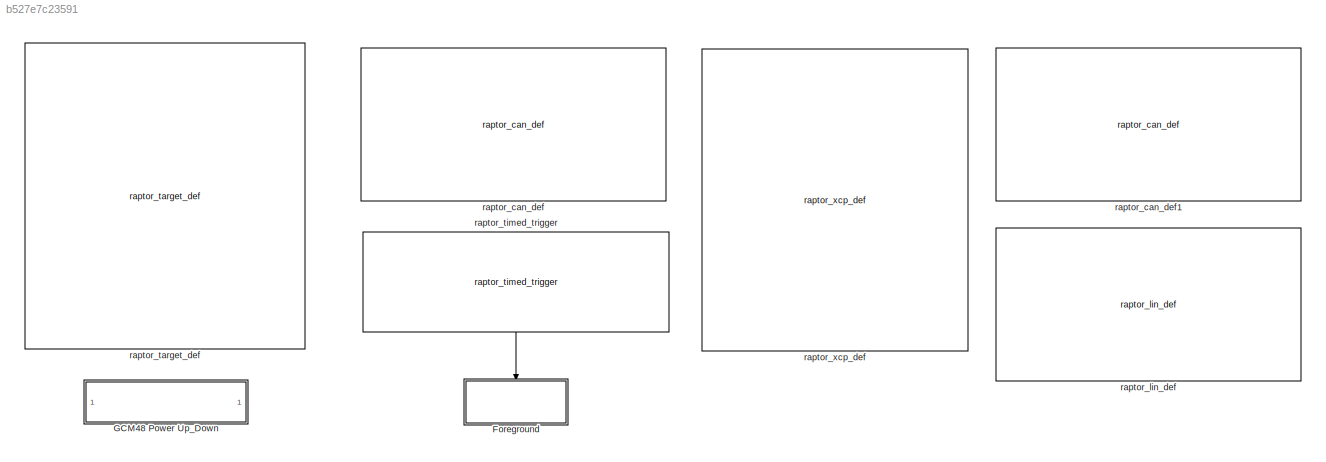
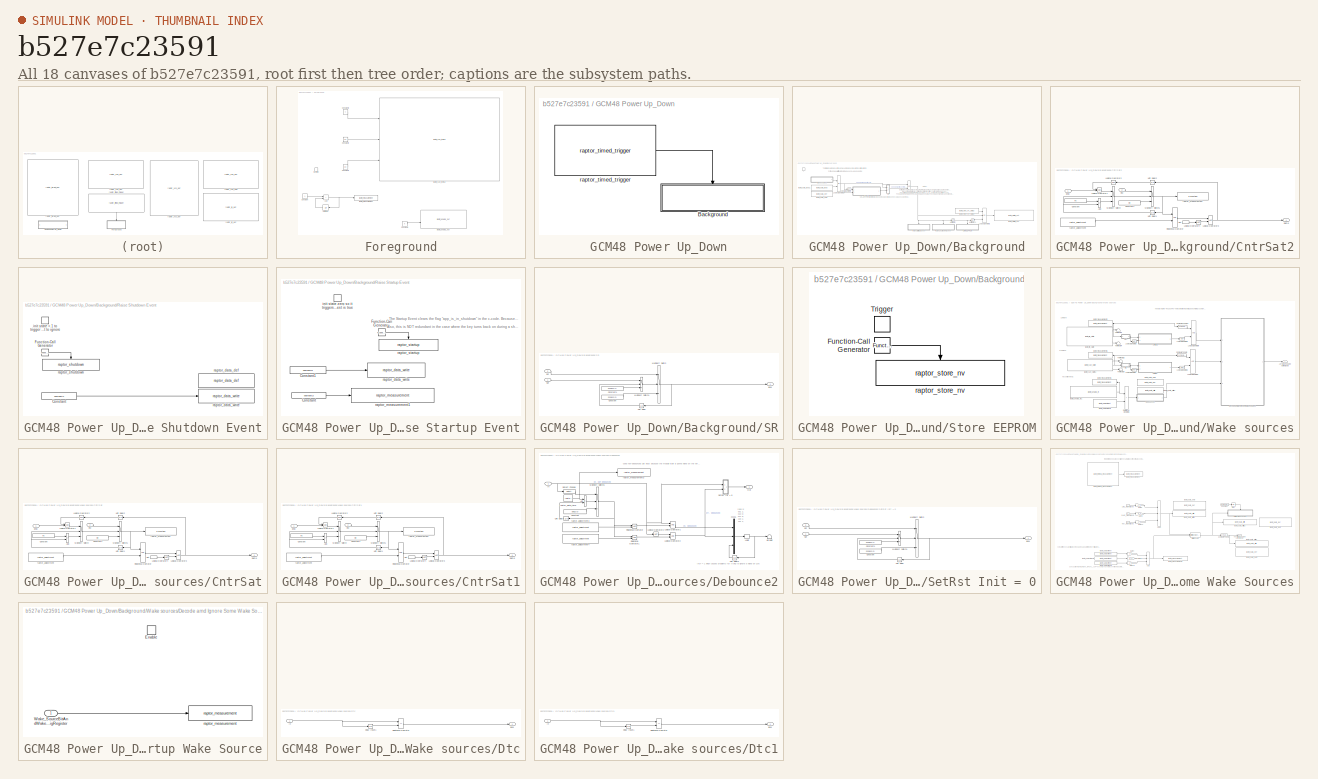
[diagram: thumbnail index - all 18 canvases of the model, root first then tree order]
MODEL slx_b527e7c23591
KIND model
CONFIG AbsTol = auto
CONFIG EnableMultiTasking = on
CONFIG FixedStep = 0.005
CONFIG InitFcn = try, model_open; catch, end
CONFIG MaxStep = auto
CONFIG MinStep = auto
CONFIG PreLoadFcn = try, model_open; catch, disp('Error occurred while executing model pre-load callback: model_open.m'); disp('Please assure that the MATLAB working directory is set to the model directory before opening.'); end
CONFIG RelTol = 1e-3
CONFIG SampleTimeConstraint = Unconstrained
CONFIG SolverName = FixedStepDiscrete
CONFIG StartTime = 0.0
CONFIG StopTime = 10.0
BLOCK [SubSystem] Foreground
  Ports = [0, 0, 0, 1]
  RTWSystemCode = Nonreusable function
  RequestExecContextInheritance = off
  TreatAsAtomicUnit = on
BLOCK [Sum] Foreground/Add
  IconShape = rectangular
  Ports = [2, 1]
BLOCK [Constant] Foreground/Constant
BLOCK [Constant] Foreground/Constant1
  Value = 80
BLOCK [Constant] Foreground/Constant2
  Value = 50
BLOCK [Constant] Foreground/Constant3
BLOCK [Constant] Foreground/Constant4
  Value = 5
BLOCK [UnitDelay] Foreground/Unit Delay
  HasFrameUpgradeWarning = on
  NameLocation = top
  SampleTime = -1
BLOCK [TriggerPort] Foreground/function
  Ports = []
  StatesWhenEnabling = held
  TriggerType = function-call
  VariantControl = Variant
BLOCK [Reference] Foreground/raptor_analog_out  REF=Raptor_lib/Input & Output/raptor_analog_out
  Ports = [2]
  SourceBlock = Raptor_lib/Input & Output/raptor_analog_out
  SourceProductName = Raptor
  SourceType = Analog Output
BLOCK [Reference] Foreground/raptor_can_txmsg  REF=Raptor_lib/CAN/raptor_can_txmsg
  Ports = [3]
  SourceBlock = Raptor_lib/CAN/raptor_can_txmsg
  SourceProductName = Raptor
  SourceType = CAN Send Message
BLOCK [Reference] Foreground/raptor_measurement  REF=Raptor_lib/Data Storage/raptor_measurement
  Ports = [1]
  SourceBlock = Raptor_lib/Data Storage/raptor_measurement
  SourceProductName = Raptor
  SourceType = Measurement
BLOCK [SubSystem] GCM48 Power Up_Down
  Ports = []
  RequestExecContextInheritance = off
BLOCK [SubSystem] GCM48 Power Up_Down/Background
  Ports = [0, 0, 0, 1]
  RequestExecContextInheritance = off
BLOCK [SubSystem] GCM48 Power Up_Down/Background/CntrSat2
  Ports = [2, 1]
  RequestExecContextInheritance = off
BLOCK [Sum] GCM48 Power Up_Down/Background/CntrSat2/Add
  IconShape = rectangular
  InputSameDT = on
  OutDataTypeStr = Inherit: Same as first input
  Ports = [2, 1]
BLOCK [Constant] GCM48 Power Up_Down/Background/CntrSat2/Constant
  OutDataTypeStr = uint32
  Value = inc
BLOCK [Constant] GCM48 Power Up_Down/Background/CntrSat2/Constant1
  OutDataTypeStr = uint32
  Value = init
BLOCK [Inport] GCM48 Power Up_Down/Background/CntrSat2/Enbl
BLOCK [Logic] GCM48 Power Up_Down/Background/CntrSat2/Logical Operator1
  OutDataTypeStr = boolean
  Ports = [2, 1]
BLOCK [Logic] GCM48 Power Up_Down/Background/CntrSat2/Logical Operator2
  Inputs = 1
  Operator = NOT
  OutDataTypeStr = boolean
  Ports = [1, 1]
BLOCK [Logic] GCM48 Power Up_Down/Background/CntrSat2/Logical Operator3
  OutDataTypeStr = boolean
  Ports = [2, 1]
BLOCK [Logic] GCM48 Power Up_Down/Background/CntrSat2/Logical Operator4
  Inputs = 1
  Operator = NOT
  OutDataTypeStr = boolean
  Ports = [1, 1]
BLOCK [MultiPortSwitch] GCM48 Power Up_Down/Background/CntrSat2/Multiport Switch
  DataPortOrder = Zero-based contiguous
  Inputs = 2
  Ports = [3, 1]
  SaturateOnIntegerOverflow = off
  zeroidx = on
BLOCK [MultiPortSwitch] GCM48 Power Up_Down/Background/CntrSat2/Multiport Switch1
  DataPortOrder = Zero-based contiguous
  Inputs = 2
  Ports = [3, 1]
  SaturateOnIntegerOverflow = off
  zeroidx = on
BLOCK [Outport] GCM48 Power Up_Down/Background/CntrSat2/RelOp
  VectorParamsAs1DForOutWhenUnconnected = off
BLOCK [RelationalOperator] GCM48 Power Up_Down/Background/CntrSat2/Relational Operator
  InputSameDT = off
  NameLocation = top
  OutDataTypeStr = boolean
  Ports = [2, 1]
BLOCK [Inport] GCM48 Power Up_Down/Background/CntrSat2/Rst
  Port = 2
BLOCK [InportShadow] GCM48 Power Up_Down/Background/CntrSat2/Rst 
  Port = 2
BLOCK [UnitDelay] GCM48 Power Up_Down/Background/CntrSat2/Unit Delay1
  HasFrameUpgradeWarning = on
  InitialCondition = init
  NameLocation = top
  SampleTime = -1
BLOCK [UnitDelay] GCM48 Power Up_Down/Background/CntrSat2/Unit Delay2
  HasFrameUpgradeWarning = on
  InitialCondition = boolean(0)
  NameLocation = top
  SampleTime = -1
BLOCK [Reference] GCM48 Power Up_Down/Background/CntrSat2/raptor_adjustment  REF=Raptor_lib/Data Storage/raptor_adjustment
  Ports = [0, 1]
  SourceBlock = Raptor_lib/Data Storage/raptor_adjustment
  SourceProductName = Raptor
  SourceType = Adjustment
BLOCK [S-Function] GCM48 Power Up_Down/Background/CntrSat2/raptor_measurement
  EnableBusSupport = off
  FunctionName = raptor_sfun_measurement
  MoveFcn = raptor_icon_redraw(gcb);
  Parameters = char({dataName,''}), uint8(calDispType), char(enumName), int32(enumValue), double(calGain), double(calOffset), double(calMax), double(calMin), char(calUnit), char(calHelp), char(calFormat), char(calFunction), char(calAccess)  <repeated x3 — deduplicated; at blocks: raptor_measurement>
  Ports = [1]
  SFcnIsStateOwnerBlock = off
  SFunctionDeploymentMode = off
BLOCK [Logic] GCM48 Power Up_Down/Background/Logical Operator1
  Operator = OR
  OutDataTypeStr = boolean
  Ports = [2, 1]
BLOCK [Logic] GCM48 Power Up_Down/Background/Logical Operator2
  Inputs = 3
  Operator = OR
  OutDataTypeStr = boolean
  Ports = [3, 1]
BLOCK [Logic] GCM48 Power Up_Down/Background/Logical Operator4
  Operator = OR
  OutDataTypeStr = boolean
  Ports = [2, 1]
BLOCK [Logic] GCM48 Power Up_Down/Background/Logical Operator6
  Operator = NOT
  OutDataTypeStr = boolean
  Ports = [1, 1]
BLOCK [SubSystem] GCM48 Power Up_Down/Background/Raise Shutdown Event
  Ports = [0, 0, 0, 1]
  RequestExecContextInheritance = off
  TreatAsAtomicUnit = on
BLOCK [Constant] GCM48 Power Up_Down/Background/Raise Shutdown Event/Constant
  Value = boolean(1)
BLOCK [Reference] GCM48 Power Up_Down/Background/Raise Shutdown Event/Function-Call Generator  REF=simulink/Ports &
Subsystems/Function-Call
Generator
  Ports = [0, 1]
  SourceBlock = simulink/Ports &\nSubsystems/Function-Call\nGenerator
  SourceProductBaseCode = SL
  SourceType = Function-Call Generator
BLOCK [TriggerPort] GCM48 Power Up_Down/Background/Raise Shutdown Event/init state = 1 to trigger at wakeup if awoken by a wake source that we want to ignore
  InitialTriggerSignalState = positive
  Ports = []
  StatesWhenEnabling = held
  TriggerType = falling
  VariantControl = Variant
BLOCK [Reference] GCM48 Power Up_Down/Background/Raise Shutdown Event/raptor_data_def  REF=Raptor_lib/Data Storage/raptor_data_def
  Ports = []
  SourceBlock = Raptor_lib/Data Storage/raptor_data_def
  SourceProductName = Raptor
  SourceType = Data Store Definition Block
BLOCK [Reference] GCM48 Power Up_Down/Background/Raise Shutdown Event/raptor_data_write  REF=Raptor_lib/Data Storage/raptor_data_write
  Ports = [1]
  SourceBlock = Raptor_lib/Data Storage/raptor_data_write
  SourceProductName = Raptor
  SourceType = Data Write Block
BLOCK [Reference] GCM48 Power Up_Down/Background/Raise Shutdown Event/raptor_shutdown  REF=Raptor_lib/Triggers/raptor_shutdown
  Ports = [0, 0, 0, 1]
  SourceBlock = Raptor_lib/Triggers/raptor_shutdown
  SourceProductName = Raptor
  SourceType = Shutdown
BLOCK [SubSystem] GCM48 Power Up_Down/Background/Raise Startup Event
  Ports = [0, 0, 0, 1]
  RequestExecContextInheritance = off
  TreatAsAtomicUnit = on
BLOCK [Constant] GCM48 Power Up_Down/Background/Raise Startup Event/Constant
  Value = boolean(1)
BLOCK [Constant] GCM48 Power Up_Down/Background/Raise Startup Event/Constant1
  Value = boolean(0)
BLOCK [Reference] GCM48 Power Up_Down/Background/Raise Startup Event/Function-Call Generator  REF=simulink/Ports &
Subsystems/Function-Call
Generator
  Ports = [0, 1]
  SourceBlock = simulink/Ports &\nSubsystems/Function-Call\nGenerator
  SourceProductBaseCode = SL
  SourceType = Function-Call Generator
BLOCK [TriggerPort] GCM48 Power Up_Down/Background/Raise Startup Event/init state zero so it triggers at wake if wake request is true
  InitialTriggerSignalState = zero
  PortDimensions = 1
  Ports = []
  StatesWhenEnabling = held
  VariantControl = Variant
BLOCK [Reference] GCM48 Power Up_Down/Background/Raise Startup Event/raptor_data_write  REF=Raptor_lib/Data Storage/raptor_data_write
  Ports = [1]
  SourceBlock = Raptor_lib/Data Storage/raptor_data_write
  SourceProductName = Raptor
  SourceType = Data Write Block
BLOCK [Reference] GCM48 Power Up_Down/Background/Raise Startup Event/raptor_measurement1  REF=Raptor_lib/Data Storage/raptor_measurement
  NameLocation = top
  Ports = [1]
  SourceBlock = Raptor_lib/Data Storage/raptor_measurement
  SourceProductName = Raptor
  SourceType = Measurement
BLOCK [Reference] GCM48 Power Up_Down/Background/Raise Startup Event/raptor_startup  REF=Raptor_lib/Triggers/raptor_startup
  Ports = [0, 0, 0, 1]
  SourceBlock = Raptor_lib/Triggers/raptor_startup
  SourceProductName = Raptor
  SourceType = Startup
BLOCK [SubSystem] GCM48 Power Up_Down/Background/SR
  Ports = [2, 1]
  RequestExecContextInheritance = off
BLOCK [Outport] GCM48 Power Up_Down/Background/SR/Bool
  VectorParamsAs1DForOutWhenUnconnected = off
BLOCK [Constant] GCM48 Power Up_Down/Background/SR/Constant
  Value = boolean(0)
BLOCK [Constant] GCM48 Power Up_Down/Background/SR/Constant1
  Value = boolean(1)
BLOCK [MultiPortSwitch] GCM48 Power Up_Down/Background/SR/Multiport Switch
  DataPortOrder = Zero-based contiguous
  InputSameDT = off
  Inputs = 2
  Ports = [3, 1]
  SaturateOnIntegerOverflow = off
  zeroidx = on
BLOCK [MultiPortSwitch] GCM48 Power Up_Down/Background/SR/Multiport Switch1
  DataPortOrder = Zero-based contiguous
  InputSameDT = off
  Inputs = 2
  Ports = [3, 1]
  SaturateOnIntegerOverflow = off
  zeroidx = on
BLOCK [Inport] GCM48 Power Up_Down/Background/SR/Rst
  Port = 2
BLOCK [Inport] GCM48 Power Up_Down/Background/SR/Set
BLOCK [UnitDelay] GCM48 Power Up_Down/Background/SR/Unit Delay
  HasFrameUpgradeWarning = on
  InitialCondition = init
  SampleTime = -1
BLOCK [SubSystem] GCM48 Power Up_Down/Background/Store EEPROM
  Ports = [0, 0, 0, 1]
  RequestExecContextInheritance = off
  TreatAsAtomicUnit = on
BLOCK [Reference] GCM48 Power Up_Down/Background/Store EEPROM/Function-Call Generator  REF=simulink/Ports &
Subsystems/Function-Call
Generator
  Ports = [0, 1]
  SourceBlock = simulink/Ports &\nSubsystems/Function-Call\nGenerator
  SourceProductBaseCode = SL
  SourceType = Function-Call Generator
BLOCK [TriggerPort] GCM48 Power Up_Down/Background/Store EEPROM/Trigger
  Ports = []
  StatesWhenEnabling = held
  TriggerType = falling
  VariantControl = Variant
BLOCK [Reference] GCM48 Power Up_Down/Background/Store EEPROM/raptor_store_nv  REF=Raptor_lib/Data Storage/raptor_store_nv
  Ports = [0, 0, 0, 1]
  SourceBlock = Raptor_lib/Data Storage/raptor_store_nv
  SourceProductName = Raptor
  SourceType = Store NonVolatile
BLOCK [UnitDelay] GCM48 Power Up_Down/Background/Unit Delay
  HasFrameUpgradeWarning = on
  SampleTime = -1
BLOCK [UnitDelay] GCM48 Power Up_Down/Background/Unit Delay1
  HasFrameUpgradeWarning = on
  SampleTime = -1
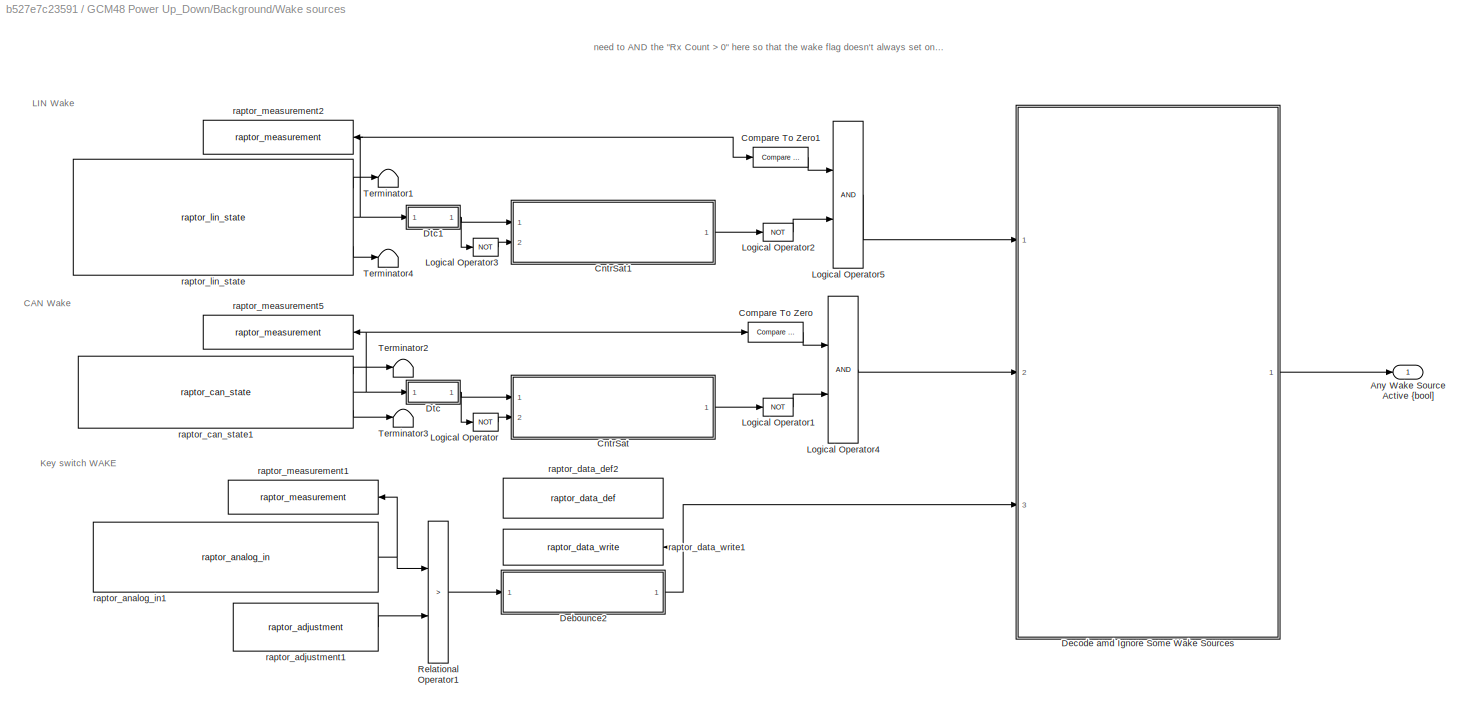
BLOCK [SubSystem] GCM48 Power Up_Down/Background/Wake sources
  Ports = [0, 1]
  RequestExecContextInheritance = off
BLOCK [Outport] GCM48 Power Up_Down/Background/Wake sources/Any Wake Source Active {bool]
  VectorParamsAs1DForOutWhenUnconnected = off
BLOCK [SubSystem] GCM48 Power Up_Down/Background/Wake sources/CntrSat
  Ports = [2, 1]
  RequestExecContextInheritance = off
BLOCK [Sum] GCM48 Power Up_Down/Background/Wake sources/CntrSat/Add
  IconShape = rectangular
  InputSameDT = on
  OutDataTypeStr = Inherit: Same as first input
  Ports = [2, 1]
BLOCK [Constant] GCM48 Power Up_Down/Background/Wake sources/CntrSat/Constant
  OutDataTypeStr = uint32
  Value = inc
BLOCK [Constant] GCM48 Power Up_Down/Background/Wake sources/CntrSat/Constant1
  OutDataTypeStr = uint32
  Value = init
BLOCK [Inport] GCM48 Power Up_Down/Background/Wake sources/CntrSat/Enbl
BLOCK [Logic] GCM48 Power Up_Down/Background/Wake sources/CntrSat/Logical Operator1
  OutDataTypeStr = boolean
  Ports = [2, 1]
BLOCK [Logic] GCM48 Power Up_Down/Background/Wake sources/CntrSat/Logical Operator2
  Inputs = 1
  Operator = NOT
  OutDataTypeStr = boolean
  Ports = [1, 1]
BLOCK [Logic] GCM48 Power Up_Down/Background/Wake sources/CntrSat/Logical Operator3
  OutDataTypeStr = boolean
  Ports = [2, 1]
BLOCK [Logic] GCM48 Power Up_Down/Background/Wake sources/CntrSat/Logical Operator4
  Inputs = 1
  Operator = NOT
  OutDataTypeStr = boolean
  Ports = [1, 1]
BLOCK [MultiPortSwitch] GCM48 Power Up_Down/Background/Wake sources/CntrSat/Multiport Switch
  DataPortOrder = Zero-based contiguous
  Inputs = 2
  Ports = [3, 1]
  SaturateOnIntegerOverflow = off
  zeroidx = on
BLOCK [MultiPortSwitch] GCM48 Power Up_Down/Background/Wake sources/CntrSat/Multiport Switch1
  DataPortOrder = Zero-based contiguous
  Inputs = 2
  Ports = [3, 1]
  SaturateOnIntegerOverflow = off
  zeroidx = on
BLOCK [Outport] GCM48 Power Up_Down/Background/Wake sources/CntrSat/RelOp
  VectorParamsAs1DForOutWhenUnconnected = off
BLOCK [RelationalOperator] GCM48 Power Up_Down/Background/Wake sources/CntrSat/Relational Operator
  InputSameDT = off
  NameLocation = top
  OutDataTypeStr = boolean
  Ports = [2, 1]
BLOCK [Inport] GCM48 Power Up_Down/Background/Wake sources/CntrSat/Rst
  Port = 2
BLOCK [InportShadow] GCM48 Power Up_Down/Background/Wake sources/CntrSat/Rst 
  Port = 2
BLOCK [UnitDelay] GCM48 Power Up_Down/Background/Wake sources/CntrSat/Unit Delay1
  HasFrameUpgradeWarning = on
  InitialCondition = init
  NameLocation = top
  SampleTime = -1
BLOCK [UnitDelay] GCM48 Power Up_Down/Background/Wake sources/CntrSat/Unit Delay2
  HasFrameUpgradeWarning = on
  InitialCondition = boolean(0)
  NameLocation = top
  SampleTime = -1
BLOCK [Reference] GCM48 Power Up_Down/Background/Wake sources/CntrSat/raptor_adjustment  REF=Raptor_lib/Data Storage/raptor_adjustment
  Ports = [0, 1]
  SourceBlock = Raptor_lib/Data Storage/raptor_adjustment
  SourceProductName = Raptor
  SourceType = Adjustment
BLOCK [S-Function] GCM48 Power Up_Down/Background/Wake sources/CntrSat/raptor_measurement
  EnableBusSupport = off
  FunctionName = raptor_sfun_measurement
  MoveFcn = raptor_icon_redraw(gcb);
  Ports = [1]
  SFcnIsStateOwnerBlock = off
  SFunctionDeploymentMode = off
BLOCK [SubSystem] GCM48 Power Up_Down/Background/Wake sources/CntrSat1
  Ports = [2, 1]
  RequestExecContextInheritance = off
BLOCK [Sum] GCM48 Power Up_Down/Background/Wake sources/CntrSat1/Add
  IconShape = rectangular
  InputSameDT = on
  OutDataTypeStr = Inherit: Same as first input
  Ports = [2, 1]
BLOCK [Constant] GCM48 Power Up_Down/Background/Wake sources/CntrSat1/Constant
  OutDataTypeStr = uint32
  Value = inc
BLOCK [Constant] GCM48 Power Up_Down/Background/Wake sources/CntrSat1/Constant1
  OutDataTypeStr = uint32
  Value = init
BLOCK [Inport] GCM48 Power Up_Down/Background/Wake sources/CntrSat1/Enbl
BLOCK [Logic] GCM48 Power Up_Down/Background/Wake sources/CntrSat1/Logical Operator1
  OutDataTypeStr = boolean
  Ports = [2, 1]
BLOCK [Logic] GCM48 Power Up_Down/Background/Wake sources/CntrSat1/Logical Operator2
  Inputs = 1
  Operator = NOT
  OutDataTypeStr = boolean
  Ports = [1, 1]
BLOCK [Logic] GCM48 Power Up_Down/Background/Wake sources/CntrSat1/Logical Operator3
  OutDataTypeStr = boolean
  Ports = [2, 1]
BLOCK [Logic] GCM48 Power Up_Down/Background/Wake sources/CntrSat1/Logical Operator4
  Inputs = 1
  Operator = NOT
  OutDataTypeStr = boolean
  Ports = [1, 1]
BLOCK [MultiPortSwitch] GCM48 Power Up_Down/Background/Wake sources/CntrSat1/Multiport Switch
  DataPortOrder = Zero-based contiguous
  Inputs = 2
  Ports = [3, 1]
  SaturateOnIntegerOverflow = off
  zeroidx = on
BLOCK [MultiPortSwitch] GCM48 Power Up_Down/Background/Wake sources/CntrSat1/Multiport Switch1
  DataPortOrder = Zero-based contiguous
  Inputs = 2
  Ports = [3, 1]
  SaturateOnIntegerOverflow = off
  zeroidx = on
BLOCK [Outport] GCM48 Power Up_Down/Background/Wake sources/CntrSat1/RelOp
  VectorParamsAs1DForOutWhenUnconnected = off
BLOCK [RelationalOperator] GCM48 Power Up_Down/Background/Wake sources/CntrSat1/Relational Operator
  InputSameDT = off
  NameLocation = top
  OutDataTypeStr = boolean
  Ports = [2, 1]
BLOCK [Inport] GCM48 Power Up_Down/Background/Wake sources/CntrSat1/Rst
  Port = 2
BLOCK [InportShadow] GCM48 Power Up_Down/Background/Wake sources/CntrSat1/Rst 
  Port = 2
BLOCK [UnitDelay] GCM48 Power Up_Down/Background/Wake sources/CntrSat1/Unit Delay1
  HasFrameUpgradeWarning = on
  InitialCondition = init
  NameLocation = top
  SampleTime = -1
BLOCK [UnitDelay] GCM48 Power Up_Down/Background/Wake sources/CntrSat1/Unit Delay2
  HasFrameUpgradeWarning = on
  InitialCondition = boolean(0)
  NameLocation = top
  SampleTime = -1
BLOCK [Reference] GCM48 Power Up_Down/Background/Wake sources/CntrSat1/raptor_adjustment  REF=Raptor_lib/Data Storage/raptor_adjustment
  Ports = [0, 1]
  SourceBlock = Raptor_lib/Data Storage/raptor_adjustment
  SourceProductName = Raptor
  SourceType = Adjustment
BLOCK [S-Function] GCM48 Power Up_Down/Background/Wake sources/CntrSat1/raptor_measurement
  EnableBusSupport = off
  FunctionName = raptor_sfun_measurement
  MoveFcn = raptor_icon_redraw(gcb);
  Ports = [1]
  SFcnIsStateOwnerBlock = off
  SFunctionDeploymentMode = off
BLOCK [Reference] GCM48 Power Up_Down/Background/Wake sources/Compare To Zero  REF=simulink/Logic and Bit
Operations/Compare
To Zero
  Ports = [1, 1]
  SourceBlock = simulink/Logic and Bit\nOperations/Compare\nTo Zero
  SourceProductBaseCode = SL
  SourceType = Compare To Zero
BLOCK [Reference] GCM48 Power Up_Down/Background/Wake sources/Compare To Zero1  REF=simulink/Logic and Bit
Operations/Compare
To Zero
  Ports = [1, 1]
  SourceBlock = simulink/Logic and Bit\nOperations/Compare\nTo Zero
  SourceProductBaseCode = SL
  SourceType = Compare To Zero
BLOCK [SubSystem] GCM48 Power Up_Down/Background/Wake sources/Debounce2
  Ports = [1, 1]
  RequestExecContextInheritance = off
BLOCK [Sum] GCM48 Power Up_Down/Background/Wake sources/Debounce2/Add
  IconShape = rectangular
  Ports = [2, 1]
BLOCK [Constant] GCM48 Power Up_Down/Background/Wake sources/Debounce2/Constant
  Value = uint32(0)
BLOCK [Reference] GCM48 Power Up_Down/Background/Wake sources/Debounce2/Detect Change  REF=simulink/Logic and Bit
Operations/Detect
Change
  Ports = [1, 1]
  SourceBlock = simulink/Logic and Bit\nOperations/Detect\nChange
  SourceProductBaseCode = SL
  SourceType = Detect Change
BLOCK [Inport] GCM48 Power Up_Down/Background/Wake sources/Debounce2/In
BLOCK [CombinatorialLogic] GCM48 Power Up_Down/Background/Wake sources/Debounce2/Logic
  Commented = on
  TruthTable = [0;1;0;0;1;1;0;0]
BLOCK [Logic] GCM48 Power Up_Down/Background/Wake sources/Debounce2/Logical Operator1
  AllPortsSameDT = off
  Commented = on
  OutDataTypeStr = boolean
  Ports = [2, 1]
BLOCK [Logic] GCM48 Power Up_Down/Background/Wake sources/Debounce2/Logical Operator2
  AllPortsSameDT = off
  OutDataTypeStr = boolean
  Ports = [2, 1]
BLOCK [Logic] GCM48 Power Up_Down/Background/Wake sources/Debounce2/Logical Operator3
  AllPortsSameDT = off
  Inputs = 1
  Operator = NOT
  OutDataTypeStr = boolean
  Ports = [1, 1]
BLOCK [MultiPortSwitch] GCM48 Power Up_Down/Background/Wake sources/Debounce2/Multiport Switch1
  DataPortOrder = Zero-based contiguous
  InputSameDT = off
  Inputs = 2
  Ports = [3, 1]
  SaturateOnIntegerOverflow = off
  zeroidx = on
BLOCK [Mux] GCM48 Power Up_Down/Background/Wake sources/Debounce2/Mux1
  Commented = on
  DisplayOption = bar
  Inputs = 3
  Ports = [3, 1]
BLOCK [Outport] GCM48 Power Up_Down/Background/Wake sources/Debounce2/Out
  VectorParamsAs1DForOutWhenUnconnected = off
BLOCK [RelationalOperator] GCM48 Power Up_Down/Background/Wake sources/Debounce2/Relational Operator
  Commented = on
  InputSameDT = off
  OutDataTypeStr = boolean
  Ports = [2, 1]
BLOCK [RelationalOperator] GCM48 Power Up_Down/Background/Wake sources/Debounce2/Relational Operator1
  InputSameDT = off
  OutDataTypeStr = boolean
  Ports = [2, 1]
BLOCK [SubSystem] GCM48 Power Up_Down/Background/Wake sources/Debounce2/SetRst Init = 0
  Ports = [2, 1]
  RequestExecContextInheritance = off
BLOCK [Outport] GCM48 Power Up_Down/Background/Wake sources/Debounce2/SetRst Init = 0/Bool
  VectorParamsAs1DForOutWhenUnconnected = off
BLOCK [Constant] GCM48 Power Up_Down/Background/Wake sources/Debounce2/SetRst Init = 0/Constant
  Value = boolean(0)
BLOCK [Constant] GCM48 Power Up_Down/Background/Wake sources/Debounce2/SetRst Init = 0/Constant1
  Value = boolean(1)
BLOCK [MultiPortSwitch] GCM48 Power Up_Down/Background/Wake sources/Debounce2/SetRst Init = 0/Multiport Switch
  DataPortOrder = Zero-based contiguous
  InputSameDT = off
  Inputs = 2
  Ports = [3, 1]
  SaturateOnIntegerOverflow = off
  zeroidx = on
BLOCK [MultiPortSwitch] GCM48 Power Up_Down/Background/Wake sources/Debounce2/SetRst Init = 0/Multiport Switch1
  DataPortOrder = Zero-based contiguous
  InputSameDT = off
  Inputs = 2
  Ports = [3, 1]
  SaturateOnIntegerOverflow = off
  zeroidx = on
BLOCK [Inport] GCM48 Power Up_Down/Background/Wake sources/Debounce2/SetRst Init = 0/Rst
  Port = 2
BLOCK [Inport] GCM48 Power Up_Down/Background/Wake sources/Debounce2/SetRst Init = 0/Set
BLOCK [UnitDelay] GCM48 Power Up_Down/Background/Wake sources/Debounce2/SetRst Init = 0/Unit Delay
  HasFrameUpgradeWarning = on
  InitialCondition = init
  SampleTime = -1
BLOCK [UnitDelay] GCM48 Power Up_Down/Background/Wake sources/Debounce2/Unit Delay
  HasFrameUpgradeWarning = on
  InitialCondition = 1
  SampleTime = -1
BLOCK [UnitDelay] GCM48 Power Up_Down/Background/Wake sources/Debounce2/Unit Delay2
  Commented = on
  HasFrameUpgradeWarning = on
  InitialCondition = 1
  SampleTime = -1
BLOCK [Terminator] GCM48 Power Up_Down/Background/Wake sources/Debounce2/old logic
  Commented = on
BLOCK [Reference] GCM48 Power Up_Down/Background/Wake sources/Debounce2/raptor_adjustment3  REF=Raptor_lib/Data Storage/raptor_adjustment
  Commented = on
  Ports = [0, 1]
  SourceBlock = Raptor_lib/Data Storage/raptor_adjustment
  SourceProductName = Raptor
  SourceType = Adjustment
BLOCK [Reference] GCM48 Power Up_Down/Background/Wake sources/Debounce2/raptor_adjustment4  REF=Raptor_lib/Data Storage/raptor_adjustment
  Ports = [0, 1]
  SourceBlock = Raptor_lib/Data Storage/raptor_adjustment
  SourceProductName = Raptor
  SourceType = Adjustment
BLOCK [Reference] GCM48 Power Up_Down/Background/Wake sources/Debounce2/raptor_delta_time  REF=Raptor_lib/Triggers/raptor_delta_time
  Ports = [0, 1]
  SourceBlock = Raptor_lib/Triggers/raptor_delta_time
  SourceProductName = Raptor
  SourceType = Delta Time
BLOCK [Reference] GCM48 Power Up_Down/Background/Wake sources/Debounce2/raptor_measurement3  REF=Raptor_lib/Data Storage/raptor_measurement
  Ports = [1]
  SourceBlock = Raptor_lib/Data Storage/raptor_measurement
  SourceProductName = Raptor
  SourceType = Measurement
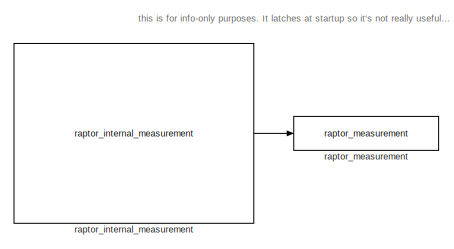
[diagram: GCM48 Power Up_Down/Background/Wake sources/Decode amd Ignore Some Wake Sources - part 1/3, top left region]
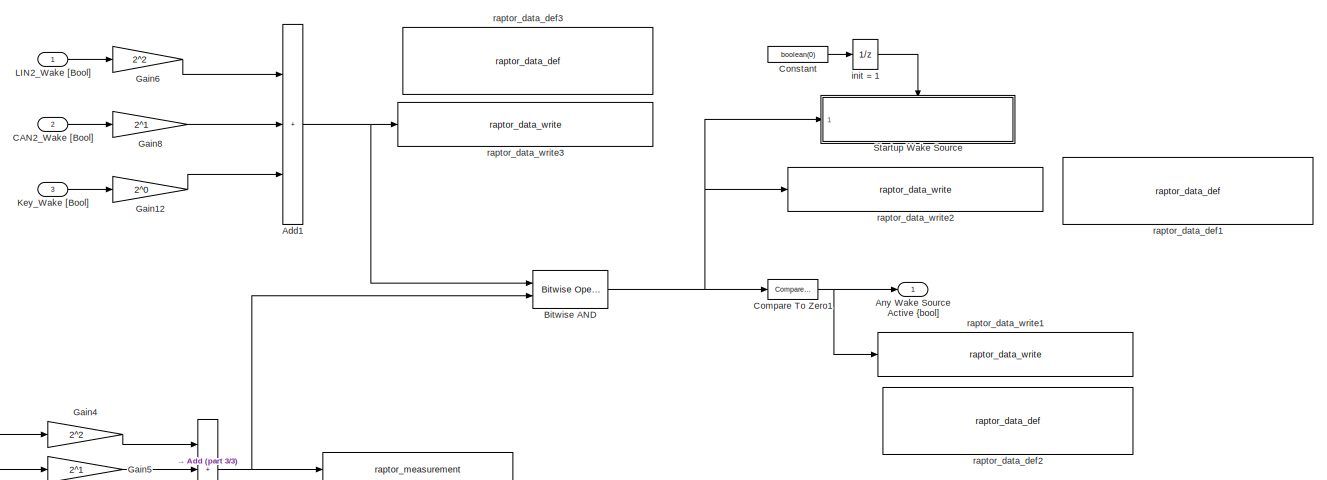
[diagram: GCM48 Power Up_Down/Background/Wake sources/Decode amd Ignore Some Wake Sources - part 2/3, central region]
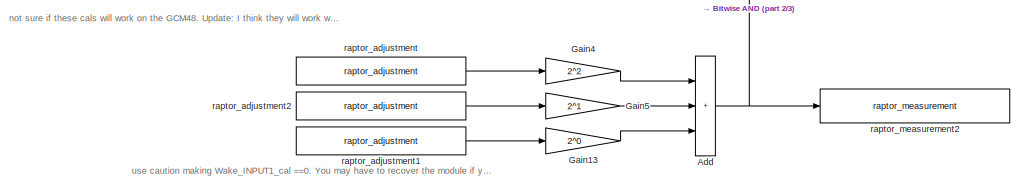
[diagram: GCM48 Power Up_Down/Background/Wake sources/Decode amd Ignore Some Wake Sources - part 3/3, bottom left region]
BLOCK [SubSystem] GCM48 Power Up_Down/Background/Wake sources/Decode amd Ignore Some Wake Sources
  Ports = [3, 1]
  RequestExecContextInheritance = off
BLOCK [Sum] GCM48 Power Up_Down/Background/Wake sources/Decode amd Ignore Some Wake Sources/Add
  IconShape = rectangular
  Inputs = 3
  OutDataTypeStr = uint16
  Ports = [3, 1]
BLOCK [Sum] GCM48 Power Up_Down/Background/Wake sources/Decode amd Ignore Some Wake Sources/Add1
  IconShape = rectangular
  Inputs = 3
  OutDataTypeStr = uint16
  Ports = [3, 1]
BLOCK [Outport] GCM48 Power Up_Down/Background/Wake sources/Decode amd Ignore Some Wake Sources/Any Wake Source Active {bool]
  VectorParamsAs1DForOutWhenUnconnected = off
BLOCK [Reference] GCM48 Power Up_Down/Background/Wake sources/Decode amd Ignore Some Wake Sources/Bitwise AND  REF=simulink/Logic and Bit
Operations/Bitwise
Operator
  Ports = [2, 1]
  SourceBlock = simulink/Logic and Bit\nOperations/Bitwise\nOperator
  SourceProductBaseCode = SL
  SourceType = Bitwise Operator
BLOCK [Inport] GCM48 Power Up_Down/Background/Wake sources/Decode amd Ignore Some Wake Sources/CAN2_Wake [Bool]
  Port = 2
BLOCK [Reference] GCM48 Power Up_Down/Background/Wake sources/Decode amd Ignore Some Wake Sources/Compare To Zero1  REF=simulink/Logic and Bit
Operations/Compare
To Zero
  Ports = [1, 1]
  SourceBlock = simulink/Logic and Bit\nOperations/Compare\nTo Zero
  SourceProductBaseCode = SL
  SourceType = Compare To Zero
BLOCK [Constant] GCM48 Power Up_Down/Background/Wake sources/Decode amd Ignore Some Wake Sources/Constant
  Value = boolean(0)
BLOCK [Gain] GCM48 Power Up_Down/Background/Wake sources/Decode amd Ignore Some Wake Sources/Gain12
  Gain = 2^0
  OutDataTypeStr = uint16
BLOCK [Gain] GCM48 Power Up_Down/Background/Wake sources/Decode amd Ignore Some Wake Sources/Gain13
  Gain = 2^0
  OutDataTypeStr = uint16
BLOCK [Gain] GCM48 Power Up_Down/Background/Wake sources/Decode amd Ignore Some Wake Sources/Gain4
  Gain = 2^2
  OutDataTypeStr = uint16
BLOCK [Gain] GCM48 Power Up_Down/Background/Wake sources/Decode amd Ignore Some Wake Sources/Gain5
  Gain = 2^1
  OutDataTypeStr = uint16
BLOCK [Gain] GCM48 Power Up_Down/Background/Wake sources/Decode amd Ignore Some Wake Sources/Gain6
  Gain = 2^2
  OutDataTypeStr = uint16
BLOCK [Gain] GCM48 Power Up_Down/Background/Wake sources/Decode amd Ignore Some Wake Sources/Gain8
  Gain = 2^1
  OutDataTypeStr = uint16
BLOCK [Inport] GCM48 Power Up_Down/Background/Wake sources/Decode amd Ignore Some Wake Sources/Key_Wake [Bool]
  Port = 3
BLOCK [Inport] GCM48 Power Up_Down/Background/Wake sources/Decode amd Ignore Some Wake Sources/LIN2_Wake [Bool]
BLOCK [SubSystem] GCM48 Power Up_Down/Background/Wake sources/Decode amd Ignore Some Wake Sources/Startup Wake Source
  Ports = [1, 0, 1]
  RequestExecContextInheritance = off
  TreatAsAtomicUnit = on
BLOCK [EnablePort] GCM48 Power Up_Down/Background/Wake sources/Decode amd Ignore Some Wake Sources/Startup Wake Source/Enable
  Ports = []
BLOCK [Inport] GCM48 Power Up_Down/Background/Wake sources/Decode amd Ignore Some Wake Sources/Startup Wake Source/Wake_SourceBitAndWakeConfigRegister
BLOCK [Reference] GCM48 Power Up_Down/Background/Wake sources/Decode amd Ignore Some Wake Sources/Startup Wake Source/raptor_measurement  REF=Raptor_lib/Data Storage/raptor_measurement
  Ports = [1]
  SourceBlock = Raptor_lib/Data Storage/raptor_measurement
  SourceProductName = Raptor
  SourceType = Measurement
BLOCK [UnitDelay] GCM48 Power Up_Down/Background/Wake sources/Decode amd Ignore Some Wake Sources/init = 1
  HasFrameUpgradeWarning = on
  InitialCondition = 1
  SampleTime = -1
BLOCK [Reference] GCM48 Power Up_Down/Background/Wake sources/Decode amd Ignore Some Wake Sources/raptor_adjustment  REF=Raptor_lib/Data Storage/raptor_adjustment
  Ports = [0, 1]
  SourceBlock = Raptor_lib/Data Storage/raptor_adjustment
  SourceProductName = Raptor
  SourceType = Adjustment
BLOCK [Reference] GCM48 Power Up_Down/Background/Wake sources/Decode amd Ignore Some Wake Sources/raptor_adjustment1  REF=Raptor_lib/Data Storage/raptor_adjustment
  Ports = [0, 1]
  SourceBlock = Raptor_lib/Data Storage/raptor_adjustment
  SourceProductName = Raptor
  SourceType = Adjustment
BLOCK [Reference] GCM48 Power Up_Down/Background/Wake sources/Decode amd Ignore Some Wake Sources/raptor_adjustment2  REF=Raptor_lib/Data Storage/raptor_adjustment
  Ports = [0, 1]
  SourceBlock = Raptor_lib/Data Storage/raptor_adjustment
  SourceProductName = Raptor
  SourceType = Adjustment
BLOCK [Reference] GCM48 Power Up_Down/Background/Wake sources/Decode amd Ignore Some Wake Sources/raptor_data_def1  REF=Raptor_lib/Data Storage/raptor_data_def
  Ports = []
  SourceBlock = Raptor_lib/Data Storage/raptor_data_def
  SourceProductName = Raptor
  SourceType = Data Store Definition Block
BLOCK [Reference] GCM48 Power Up_Down/Background/Wake sources/Decode amd Ignore Some Wake Sources/raptor_data_def2  REF=Raptor_lib/Data Storage/raptor_data_def
  Ports = []
  SourceBlock = Raptor_lib/Data Storage/raptor_data_def
  SourceProductName = Raptor
  SourceType = Data Store Definition Block
BLOCK [Reference] GCM48 Power Up_Down/Background/Wake sources/Decode amd Ignore Some Wake Sources/raptor_data_def3  REF=Raptor_lib/Data Storage/raptor_data_def
  Ports = []
  SourceBlock = Raptor_lib/Data Storage/raptor_data_def
  SourceProductName = Raptor
  SourceType = Data Store Definition Block
BLOCK [Reference] GCM48 Power Up_Down/Background/Wake sources/Decode amd Ignore Some Wake Sources/raptor_data_write1  REF=Raptor_lib/Data Storage/raptor_data_write
  Ports = [1]
  SourceBlock = Raptor_lib/Data Storage/raptor_data_write
  SourceProductName = Raptor
  SourceType = Data Write Block
BLOCK [Reference] GCM48 Power Up_Down/Background/Wake sources/Decode amd Ignore Some Wake Sources/raptor_data_write2  REF=Raptor_lib/Data Storage/raptor_data_write
  Ports = [1]
  SourceBlock = Raptor_lib/Data Storage/raptor_data_write
  SourceProductName = Raptor
  SourceType = Data Write Block
BLOCK [Reference] GCM48 Power Up_Down/Background/Wake sources/Decode amd Ignore Some Wake Sources/raptor_data_write3  REF=Raptor_lib/Data Storage/raptor_data_write
  Ports = [1]
  SourceBlock = Raptor_lib/Data Storage/raptor_data_write
  SourceProductName = Raptor
  SourceType = Data Write Block
BLOCK [Reference] GCM48 Power Up_Down/Background/Wake sources/Decode amd Ignore Some Wake Sources/raptor_internal_measurement  REF=Raptor_lib/Input & Output/raptor_internal_measurement
  Ports = [0, 1]
  SourceBlock = Raptor_lib/Input & Output/raptor_internal_measurement
  SourceProductName = Raptor
  SourceType = Internal Mesaurement Block
BLOCK [Reference] GCM48 Power Up_Down/Background/Wake sources/Decode amd Ignore Some Wake Sources/raptor_measurement  REF=Raptor_lib/Data Storage/raptor_measurement
  Ports = [1]
  SourceBlock = Raptor_lib/Data Storage/raptor_measurement
  SourceProductName = Raptor
  SourceType = Measurement
BLOCK [Reference] GCM48 Power Up_Down/Background/Wake sources/Decode amd Ignore Some Wake Sources/raptor_measurement2  REF=Raptor_lib/Data Storage/raptor_measurement
  Ports = [1]
  SourceBlock = Raptor_lib/Data Storage/raptor_measurement
  SourceProductName = Raptor
  SourceType = Measurement
BLOCK [SubSystem] GCM48 Power Up_Down/Background/Wake sources/Dtc
  Ports = [1, 1]
  RequestExecContextInheritance = off
BLOCK [Outport] GCM48 Power Up_Down/Background/Wake sources/Dtc/Bool
  InitialOutput = 0
  VectorParamsAs1DForOutWhenUnconnected = off
BLOCK [UnitDelay] GCM48 Power Up_Down/Background/Wake sources/Dtc/Delay Input1
  Description = Store in Global RAM
  DisableCoverage = on
  HasFrameUpgradeWarning = on
  InitialCondition = init
  SampleTime = -1
BLOCK [Inport] GCM48 Power Up_Down/Background/Wake sources/Dtc/In
BLOCK [RelationalOperator] GCM48 Power Up_Down/Background/Wake sources/Dtc/Relational Operator
  Operator = ==
  OutDataTypeStr = boolean
  Ports = [2, 1]
BLOCK [SubSystem] GCM48 Power Up_Down/Background/Wake sources/Dtc1
  Ports = [1, 1]
  RequestExecContextInheritance = off
BLOCK [Outport] GCM48 Power Up_Down/Background/Wake sources/Dtc1/Bool
  InitialOutput = 0
  VectorParamsAs1DForOutWhenUnconnected = off
BLOCK [UnitDelay] GCM48 Power Up_Down/Background/Wake sources/Dtc1/Delay Input1
  Description = Store in Global RAM
  DisableCoverage = on
  HasFrameUpgradeWarning = on
  InitialCondition = init
  SampleTime = -1
BLOCK [Inport] GCM48 Power Up_Down/Background/Wake sources/Dtc1/In
BLOCK [RelationalOperator] GCM48 Power Up_Down/Background/Wake sources/Dtc1/Relational Operator
  Operator = ==
  OutDataTypeStr = boolean
  Ports = [2, 1]
BLOCK [Logic] GCM48 Power Up_Down/Background/Wake sources/Logical Operator
  AllPortsSameDT = off
  Operator = NOT
  OutDataTypeStr = boolean
  Ports = [1, 1]
BLOCK [Logic] GCM48 Power Up_Down/Background/Wake sources/Logical Operator1
  AllPortsSameDT = off
  Operator = NOT
  OutDataTypeStr = boolean
  Ports = [1, 1]
BLOCK [Logic] GCM48 Power Up_Down/Background/Wake sources/Logical Operator2
  AllPortsSameDT = off
  Operator = NOT
  OutDataTypeStr = boolean
  Ports = [1, 1]
BLOCK [Logic] GCM48 Power Up_Down/Background/Wake sources/Logical Operator3
  AllPortsSameDT = off
  Operator = NOT
  OutDataTypeStr = boolean
  Ports = [1, 1]
BLOCK [Logic] GCM48 Power Up_Down/Background/Wake sources/Logical Operator4
  AllPortsSameDT = off
  OutDataTypeStr = boolean
  Ports = [2, 1]
BLOCK [Logic] GCM48 Power Up_Down/Background/Wake sources/Logical Operator5
  AllPortsSameDT = off
  OutDataTypeStr = boolean
  Ports = [2, 1]
BLOCK [RelationalOperator] GCM48 Power Up_Down/Background/Wake sources/Relational Operator1
  InputSameDT = off
  Operator = >
  OutDataTypeStr = boolean
  Ports = [2, 1]
  RndMeth = Simplest
BLOCK [Terminator] GCM48 Power Up_Down/Background/Wake sources/Terminator1
BLOCK [Terminator] GCM48 Power Up_Down/Background/Wake sources/Terminator2
BLOCK [Terminator] GCM48 Power Up_Down/Background/Wake sources/Terminator3
BLOCK [Terminator] GCM48 Power Up_Down/Background/Wake sources/Terminator4
BLOCK [Reference] GCM48 Power Up_Down/Background/Wake sources/raptor_adjustment1  REF=Raptor_lib/Data Storage/raptor_adjustment
  Ports = [0, 1]
  SourceBlock = Raptor_lib/Data Storage/raptor_adjustment
  SourceProductName = Raptor
  SourceType = Adjustment
BLOCK [Reference] GCM48 Power Up_Down/Background/Wake sources/raptor_analog_in1  REF=Raptor_lib/Input & Output/raptor_analog_in
  Ports = [0, 1]
  SourceBlock = Raptor_lib/Input & Output/raptor_analog_in
  SourceProductName = Raptor
  SourceType = Analog Input
BLOCK [Reference] GCM48 Power Up_Down/Background/Wake sources/raptor_can_state1  REF=Raptor_lib/CAN/raptor_can_state
  Ports = [0, 3]
  SourceBlock = Raptor_lib/CAN/raptor_can_state
  SourceProductName = Raptor
  SourceType = CAN State
BLOCK [Reference] GCM48 Power Up_Down/Background/Wake sources/raptor_data_def2  REF=Raptor_lib/Data Storage/raptor_data_def
  Ports = []
  SourceBlock = Raptor_lib/Data Storage/raptor_data_def
  SourceProductName = Raptor
  SourceType = Data Store Definition Block
BLOCK [Reference] GCM48 Power Up_Down/Background/Wake sources/raptor_data_write1  REF=Raptor_lib/Data Storage/raptor_data_write
  Ports = [1]
  SourceBlock = Raptor_lib/Data Storage/raptor_data_write
  SourceProductName = Raptor
  SourceType = Data Write Block
BLOCK [Reference] GCM48 Power Up_Down/Background/Wake sources/raptor_lin_state  REF=Raptor_lib/LIN/raptor_lin_state
  Ports = [0, 3]
  SourceBlock = Raptor_lib/LIN/raptor_lin_state
  SourceProductName = Raptor
  SourceType = LIN State
BLOCK [Reference] GCM48 Power Up_Down/Background/Wake sources/raptor_measurement1  REF=Raptor_lib/Data Storage/raptor_measurement
  NameLocation = top
  Ports = [1]
  SourceBlock = Raptor_lib/Data Storage/raptor_measurement
  SourceProductName = Raptor
  SourceType = Measurement
BLOCK [Reference] GCM48 Power Up_Down/Background/Wake sources/raptor_measurement2  REF=Raptor_lib/Data Storage/raptor_measurement
  NameLocation = top
  Ports = [1]
  SourceBlock = Raptor_lib/Data Storage/raptor_measurement
  SourceProductName = Raptor
  SourceType = Measurement
BLOCK [Reference] GCM48 Power Up_Down/Background/Wake sources/raptor_measurement5  REF=Raptor_lib/Data Storage/raptor_measurement
  NameLocation = top
  Ports = [1]
  SourceBlock = Raptor_lib/Data Storage/raptor_measurement
  SourceProductName = Raptor
  SourceType = Measurement
BLOCK [TriggerPort] GCM48 Power Up_Down/Background/f
  Ports = []
  TriggerType = function-call
  VariantControl = Variant
  ZeroCross = off
BLOCK [Reference] GCM48 Power Up_Down/Background/raptor_data_def1  REF=Raptor_lib/Data Storage/raptor_data_def
  Ports = []
  SourceBlock = Raptor_lib/Data Storage/raptor_data_def
  SourceProductName = Raptor
  SourceType = Data Store Definition Block
BLOCK [Reference] GCM48 Power Up_Down/Background/raptor_data_read1  REF=Raptor_lib/Data Storage/raptor_data_read
  Ports = [0, 1]
  SourceBlock = Raptor_lib/Data Storage/raptor_data_read
  SourceProductName = Raptor
  SourceType = Data Read Block
BLOCK [Reference] GCM48 Power Up_Down/Background/raptor_digital_out  REF=Raptor_lib/Input & Output/raptor_digital_out
  Ports = [1]
  SourceBlock = Raptor_lib/Input & Output/raptor_digital_out
  SourceProductName = Raptor
  SourceType = Digital Output
BLOCK [Reference] GCM48 Power Up_Down/Background/raptor_sfun_nv_status  REF=Raptor_lib/Data Storage/raptor_sfun_nv_status
  Ports = [0, 1]
  SourceBlock = Raptor_lib/Data Storage/raptor_sfun_nv_status
  SourceProductName = Raptor
  SourceType = Nonvolatile Status
BLOCK [Reference] GCM48 Power Up_Down/raptor_timed_trigger  REF=Raptor_lib/Triggers/raptor_timed_trigger
  Ports = [0, 1]
  SourceBlock = Raptor_lib/Triggers/raptor_timed_trigger
  SourceProductName = Raptor
  SourceType = Timed Trigger Block
BLOCK [Reference] raptor_can_def  REF=Raptor_lib/CAN/raptor_can_def
  Ports = []
  SourceBlock = Raptor_lib/CAN/raptor_can_def
  SourceProductName = Raptor
  SourceType = CAN Definition
BLOCK [Reference] raptor_can_def1  REF=Raptor_lib/CAN/raptor_can_def
  Ports = []
  SourceBlock = Raptor_lib/CAN/raptor_can_def
  SourceProductName = Raptor
  SourceType = CAN Definition
BLOCK [Reference] raptor_lin_def  REF=Raptor_lib/LIN/raptor_lin_def
  Ports = []
  SourceBlock = Raptor_lib/LIN/raptor_lin_def
  SourceProductName = Raptor
  SourceType = LIN Definition
BLOCK [Reference] raptor_target_def  REF=Raptor_lib/Configuration/raptor_target_def
  Ports = []
  SourceBlock = Raptor_lib/Configuration/raptor_target_def
  SourceProductName = Raptor
  SourceType = Target Definition Block
BLOCK [Reference] raptor_timed_trigger  REF=Raptor_lib/Triggers/raptor_timed_trigger
  NameLocation = left
  Ports = [0, 1]
  SourceBlock = Raptor_lib/Triggers/raptor_timed_trigger
  SourceProductName = Raptor
  SourceType = Timed Trigger Block
BLOCK [Reference] raptor_xcp_def  REF=Raptor_lib/Configuration/raptor_xcp_def
  Ports = []
  SourceBlock = Raptor_lib/Configuration/raptor_xcp_def
  SourceProductName = Raptor
  SourceType = XCP Definition Block
ANNOTATION GCM48 Power Up_Down/Background: Notes : - Calling the shutdown task stops the foreground tasks. However, background tasks continue, so the reading of key switch must be in this subsystem to allow the module to resume operation (by calling the startup task) if keyswitch is turned back on before the module actually turns off. - The Startup Event clears the flag "app_is_in_shutdown" in the c-code. Because this RAM flag initializes ...<+221ch>
ANNOTATION GCM48 Power Up_Down/Background: SR Latch so that the timer wont keep module on if awoken by a wake source that we want to ignore
ANNOTATION GCM48 Power Up_Down/Background: This timer is here to prevent the GCM196 foreground task from shutting off until all low-side outputs have been turned off.Without this timer, GCM196 LSO's will get frozen at their last value until final power down, but gatway app softwarewill stop as soon as the key shuts off. For the GCM48, I left it here to aid in wake-on-CAN debugging
ANNOTATION GCM48 Power Up_Down/Background/Raise Startup Event: - The Startup Event clears the flag "app_is_in_shutdown" in the c-code. Because this RAM flag initializes to zero anyway at startup, calling it here again is redundant. But leave it for clarity to the user. Also, this is NOT redundant in the case where the key turns back on during a shutdown. in that case, you definitely need this here
ANNOTATION GCM48 Power Up_Down/Background/Wake sources: CAN Wake
ANNOTATION GCM48 Power Up_Down/Background/Wake sources: Key switch WAKE
ANNOTATION GCM48 Power Up_Down/Background/Wake sources: LIN Wake
ANNOTATION GCM48 Power Up_Down/Background/Wake sources: need to AND the "Rx Count > 0" here so that the wake flag doesn't always set on startup just because the debouce timer hasnt initialized yet
ANNOTATION GCM48 Power Up_Down/Background/Wake sources/Debounce2: INIT = 1 which causes problems for trying to ignore a wake on CAN
ANNOTATION GCM48 Power Up_Down/Background/Wake sources/Debounce2: [000 0; 001 1; 010 0; 011 0; 100 1; 101 1; 110 0; 111 0;]
ANNOTATION GCM48 Power Up_Down/Background/Wake sources/Debounce2: used non-debounced Set input because the module itself is gonna wake on the very first loop regardless of what we do here in the app software. Debouncing it just makes "WakeSource_Startup" read 0 and confuses people trying to debug unwanted wake events
ANNOTATION GCM48 Power Up_Down/Background/Wake sources/Decode amd Ignore Some Wake Sources: not sure if these cals will work on the GCM48. Update: I think they will work with the way we did the hbridge output. need to test that the foreground doesnt start when these are zero
ANNOTATION GCM48 Power Up_Down/Background/Wake sources/Decode amd Ignore Some Wake Sources: this is for info-only purposes. It latches at startup so it's not really useful for runtime & powerdown logic
ANNOTATION GCM48 Power Up_Down/Background/Wake sources/Decode amd Ignore Some Wake Sources: use caution making Wake_INPUT1_cal ==0. You may have to recover the module if you make all of these zero
NET Foreground/Add:1 -> Foreground/Unit Delay:1, Foreground/raptor_measurement:1
LINE Foreground/Constant1:1 -> Foreground/raptor_can_txmsg:3
LINE Foreground/Constant2:1 -> Foreground/raptor_can_txmsg:2
LINE Foreground/Constant3:1 -> Foreground/raptor_can_txmsg:1
LINE Foreground/Constant4:1 -> Foreground/raptor_analog_out:2
LINE Foreground/Constant:1 -> Foreground/Add:1
LINE Foreground/Unit Delay:1 -> Foreground/Add:2
LINE GCM48 Power Up_Down/Background/CntrSat2:1 -> GCM48 Power Up_Down/Background/SR:2
NET GCM48 Power Up_Down/Background/Logical Operator1:1 -> GCM48 Power Up_Down/Background/CntrSat2:2, GCM48 Power Up_Down/Background/Logical Operator4:1, GCM48 Power Up_Down/Background/Logical Operator6:1, GCM48 Power Up_Down/Background/SR:1
LINE GCM48 Power Up_Down/Background/Logical Operator2:1 -> GCM48 Power Up_Down/Background/raptor_digital_out:1
NET GCM48 Power Up_Down/Background/Logical Operator4:1 -> GCM48 Power Up_Down/Background/Logical Operator2:2, GCM48 Power Up_Down/Background/Raise Shutdown Event:trigger, GCM48 Power Up_Down/Background/Raise Startup Event:trigger, GCM48 Power Up_Down/Background/Unit Delay:1
LINE GCM48 Power Up_Down/Background/Logical Operator6:1 -> GCM48 Power Up_Down/Background/CntrSat2:1
LINE GCM48 Power Up_Down/Background/Raise Shutdown Event/Constant:1 -> GCM48 Power Up_Down/Background/Raise Shutdown Event/raptor_data_write:1
LINE GCM48 Power Up_Down/Background/Raise Shutdown Event/Function-Call Generator:1 -> GCM48 Power Up_Down/Background/Raise Shutdown Event/raptor_shutdown:trigger
LINE GCM48 Power Up_Down/Background/Raise Startup Event/Constant1:1 -> GCM48 Power Up_Down/Background/Raise Startup Event/raptor_data_write:1
LINE GCM48 Power Up_Down/Background/Raise Startup Event/Constant:1 -> GCM48 Power Up_Down/Background/Raise Startup Event/raptor_measurement1:1
LINE GCM48 Power Up_Down/Background/Raise Startup Event/Function-Call Generator:1 -> GCM48 Power Up_Down/Background/Raise Startup Event/raptor_startup:trigger
LINE GCM48 Power Up_Down/Background/SR:1 -> GCM48 Power Up_Down/Background/Logical Operator4:2
LINE GCM48 Power Up_Down/Background/Store EEPROM/Function-Call Generator:1 -> GCM48 Power Up_Down/Background/Store EEPROM/raptor_store_nv:trigger
LINE GCM48 Power Up_Down/Background/Unit Delay1:1 -> GCM48 Power Up_Down/Background/Logical Operator2:3
NET GCM48 Power Up_Down/Background/Unit Delay:1 -> GCM48 Power Up_Down/Background/Store EEPROM:trigger, GCM48 Power Up_Down/Background/Unit Delay1:1
LINE GCM48 Power Up_Down/Background/Wake sources/CntrSat1:1 -> GCM48 Power Up_Down/Background/Wake sources/Logical Operator2:1
LINE GCM48 Power Up_Down/Background/Wake sources/CntrSat:1 -> GCM48 Power Up_Down/Background/Wake sources/Logical Operator1:1
LINE GCM48 Power Up_Down/Background/Wake sources/Compare To Zero1:1 -> GCM48 Power Up_Down/Background/Wake sources/Logical Operator5:1
LINE GCM48 Power Up_Down/Background/Wake sources/Compare To Zero:1 -> GCM48 Power Up_Down/Background/Wake sources/Logical Operator4:1
LINE GCM48 Power Up_Down/Background/Wake sources/Debounce2/Add:1 -> GCM48 Power Up_Down/Background/Wake sources/Debounce2/Multiport Switch1:2
LINE GCM48 Power Up_Down/Background/Wake sources/Debounce2/Constant:1 -> GCM48 Power Up_Down/Background/Wake sources/Debounce2/Multiport Switch1:3
LINE GCM48 Power Up_Down/Background/Wake sources/Debounce2/Detect Change:1 -> GCM48 Power Up_Down/Background/Wake sources/Debounce2/Multiport Switch1:1
NET GCM48 Power Up_Down/Background/Wake sources/Debounce2/In:1 -> GCM48 Power Up_Down/Background/Wake sources/Debounce2/Detect Change:1, GCM48 Power Up_Down/Background/Wake sources/Debounce2/Logical Operator1:1, GCM48 Power Up_Down/Background/Wake sources/Debounce2/Logical Operator3:1, GCM48 Power Up_Down/Background/Wake sources/Debounce2/SetRst Init = 0:1
NET GCM48 Power Up_Down/Background/Wake sources/Debounce2/Logic:1 -> GCM48 Power Up_Down/Background/Wake sources/Debounce2/Unit Delay2:1, GCM48 Power Up_Down/Background/Wake sources/Debounce2/old logic:1
LINE GCM48 Power Up_Down/Background/Wake sources/Debounce2/Logical Operator1:1 -> GCM48 Power Up_Down/Background/Wake sources/Debounce2/Mux1:1
NET GCM48 Power Up_Down/Background/Wake sources/Debounce2/Logical Operator2:1 -> GCM48 Power Up_Down/Background/Wake sources/Debounce2/Mux1:2, GCM48 Power Up_Down/Background/Wake sources/Debounce2/SetRst Init = 0:2
LINE GCM48 Power Up_Down/Background/Wake sources/Debounce2/Logical Operator3:1 -> GCM48 Power Up_Down/Background/Wake sources/Debounce2/Logical Operator2:1
NET GCM48 Power Up_Down/Background/Wake sources/Debounce2/Multiport Switch1:1 -> GCM48 Power Up_Down/Background/Wake sources/Debounce2/Relational Operator1:1, GCM48 Power Up_Down/Background/Wake sources/Debounce2/Relational Operator:1, GCM48 Power Up_Down/Background/Wake sources/Debounce2/Unit Delay:1
LINE GCM48 Power Up_Down/Background/Wake sources/Debounce2/Mux1:1 -> GCM48 Power Up_Down/Background/Wake sources/Debounce2/Logic:1
LINE GCM48 Power Up_Down/Background/Wake sources/Debounce2/Relational Operator1:1 -> GCM48 Power Up_Down/Background/Wake sources/Debounce2/Logical Operator2:2
LINE GCM48 Power Up_Down/Background/Wake sources/Debounce2/Relational Operator:1 -> GCM48 Power Up_Down/Background/Wake sources/Debounce2/Logical Operator1:2
LINE GCM48 Power Up_Down/Background/Wake sources/Debounce2/SetRst Init = 0:1 -> GCM48 Power Up_Down/Background/Wake sources/Debounce2/Out:1
LINE GCM48 Power Up_Down/Background/Wake sources/Debounce2/Unit Delay2:1 -> GCM48 Power Up_Down/Background/Wake sources/Debounce2/Mux1:3
LINE GCM48 Power Up_Down/Background/Wake sources/Debounce2/Unit Delay:1 -> GCM48 Power Up_Down/Background/Wake sources/Debounce2/Add:2
LINE GCM48 Power Up_Down/Background/Wake sources/Debounce2/raptor_adjustment3:1 -> GCM48 Power Up_Down/Background/Wake sources/Debounce2/Relational Operator:2
LINE GCM48 Power Up_Down/Background/Wake sources/Debounce2/raptor_adjustment4:1 -> GCM48 Power Up_Down/Background/Wake sources/Debounce2/Relational Operator1:2
NET GCM48 Power Up_Down/Background/Wake sources/Debounce2/raptor_delta_time:1 -> GCM48 Power Up_Down/Background/Wake sources/Debounce2/Add:1, GCM48 Power Up_Down/Background/Wake sources/Debounce2/raptor_measurement3:1
NET GCM48 Power Up_Down/Background/Wake sources/Debounce2:1 -> GCM48 Power Up_Down/Background/Wake sources/Decode amd Ignore Some Wake Sources:3, GCM48 Power Up_Down/Background/Wake sources/raptor_data_write1:1
NET GCM48 Power Up_Down/Background/Wake sources/Decode amd Ignore Some Wake Sources/Add1:1 -> GCM48 Power Up_Down/Background/Wake sources/Decode amd Ignore Some Wake Sources/Bitwise AND:1, GCM48 Power Up_Down/Background/Wake sources/Decode amd Ignore Some Wake Sources/raptor_data_write3:1
NET GCM48 Power Up_Down/Background/Wake sources/Decode amd Ignore Some Wake Sources/Add:1 -> GCM48 Power Up_Down/Background/Wake sources/Decode amd Ignore Some Wake Sources/Bitwise AND:2, GCM48 Power Up_Down/Background/Wake sources/Decode amd Ignore Some Wake Sources/raptor_measurement2:1
NET GCM48 Power Up_Down/Background/Wake sources/Decode amd Ignore Some Wake Sources/Bitwise AND:1 -> GCM48 Power Up_Down/Background/Wake sources/Decode amd Ignore Some Wake Sources/Compare To Zero1:1, GCM48 Power Up_Down/Background/Wake sources/Decode amd Ignore Some Wake Sources/Startup Wake Source:1, GCM48 Power Up_Down/Background/Wake sources/Decode amd Ignore Some Wake Sources/raptor_data_write2:1
LINE GCM48 Power Up_Down/Background/Wake sources/Decode amd Ignore Some Wake Sources/CAN2_Wake [Bool]:1 -> GCM48 Power Up_Down/Background/Wake sources/Decode amd Ignore Some Wake Sources/Gain8:1
NET GCM48 Power Up_Down/Background/Wake sources/Decode amd Ignore Some Wake Sources/Compare To Zero1:1 -> GCM48 Power Up_Down/Background/Wake sources/Decode amd Ignore Some Wake Sources/Any Wake Source Active {bool]:1, GCM48 Power Up_Down/Background/Wake sources/Decode amd Ignore Some Wake Sources/raptor_data_write1:1
LINE GCM48 Power Up_Down/Background/Wake sources/Decode amd Ignore Some Wake Sources/Constant:1 -> GCM48 Power Up_Down/Background/Wake sources/Decode amd Ignore Some Wake Sources/init = 1:1
LINE GCM48 Power Up_Down/Background/Wake sources/Decode amd Ignore Some Wake Sources/Gain12:1 -> GCM48 Power Up_Down/Background/Wake sources/Decode amd Ignore Some Wake Sources/Add1:3
LINE GCM48 Power Up_Down/Background/Wake sources/Decode amd Ignore Some Wake Sources/Gain13:1 -> GCM48 Power Up_Down/Background/Wake sources/Decode amd Ignore Some Wake Sources/Add:3
LINE GCM48 Power Up_Down/Background/Wake sources/Decode amd Ignore Some Wake Sources/Gain4:1 -> GCM48 Power Up_Down/Background/Wake sources/Decode amd Ignore Some Wake Sources/Add:1
LINE GCM48 Power Up_Down/Background/Wake sources/Decode amd Ignore Some Wake Sources/Gain5:1 -> GCM48 Power Up_Down/Background/Wake sources/Decode amd Ignore Some Wake Sources/Add:2
LINE GCM48 Power Up_Down/Background/Wake sources/Decode amd Ignore Some Wake Sources/Gain6:1 -> GCM48 Power Up_Down/Background/Wake sources/Decode amd Ignore Some Wake Sources/Add1:1
LINE GCM48 Power Up_Down/Background/Wake sources/Decode amd Ignore Some Wake Sources/Gain8:1 -> GCM48 Power Up_Down/Background/Wake sources/Decode amd Ignore Some Wake Sources/Add1:2
LINE GCM48 Power Up_Down/Background/Wake sources/Decode amd Ignore Some Wake Sources/Key_Wake [Bool]:1 -> GCM48 Power Up_Down/Background/Wake sources/Decode amd Ignore Some Wake Sources/Gain12:1
LINE GCM48 Power Up_Down/Background/Wake sources/Decode amd Ignore Some Wake Sources/LIN2_Wake [Bool]:1 -> GCM48 Power Up_Down/Background/Wake sources/Decode amd Ignore Some Wake Sources/Gain6:1
LINE GCM48 Power Up_Down/Background/Wake sources/Decode amd Ignore Some Wake Sources/Startup Wake Source/Wake_SourceBitAndWakeConfigRegister:1 -> GCM48 Power Up_Down/Background/Wake sources/Decode amd Ignore Some Wake Sources/Startup Wake Source/raptor_measurement:1
LINE GCM48 Power Up_Down/Background/Wake sources/Decode amd Ignore Some Wake Sources/init = 1:1 -> GCM48 Power Up_Down/Background/Wake sources/Decode amd Ignore Some Wake Sources/Startup Wake Source:enable
LINE GCM48 Power Up_Down/Background/Wake sources/Decode amd Ignore Some Wake Sources/raptor_adjustment1:1 -> GCM48 Power Up_Down/Background/Wake sources/Decode amd Ignore Some Wake Sources/Gain13:1
LINE GCM48 Power Up_Down/Background/Wake sources/Decode amd Ignore Some Wake Sources/raptor_adjustment2:1 -> GCM48 Power Up_Down/Background/Wake sources/Decode amd Ignore Some Wake Sources/Gain5:1
LINE GCM48 Power Up_Down/Background/Wake sources/Decode amd Ignore Some Wake Sources/raptor_adjustment:1 -> GCM48 Power Up_Down/Background/Wake sources/Decode amd Ignore Some Wake Sources/Gain4:1
LINE GCM48 Power Up_Down/Background/Wake sources/Decode amd Ignore Some Wake Sources/raptor_internal_measurement:1 -> GCM48 Power Up_Down/Background/Wake sources/Decode amd Ignore Some Wake Sources/raptor_measurement:1
LINE GCM48 Power Up_Down/Background/Wake sources/Decode amd Ignore Some Wake Sources:1 -> GCM48 Power Up_Down/Background/Wake sources/Any Wake Source Active {bool]:1
NET GCM48 Power Up_Down/Background/Wake sources/Dtc1:1 -> GCM48 Power Up_Down/Background/Wake sources/CntrSat1:1, GCM48 Power Up_Down/Background/Wake sources/Logical Operator3:1
NET GCM48 Power Up_Down/Background/Wake sources/Dtc:1 -> GCM48 Power Up_Down/Background/Wake sources/CntrSat:1, GCM48 Power Up_Down/Background/Wake sources/Logical Operator:1
LINE GCM48 Power Up_Down/Background/Wake sources/Logical Operator1:1 -> GCM48 Power Up_Down/Background/Wake sources/Logical Operator4:2
LINE GCM48 Power Up_Down/Background/Wake sources/Logical Operator2:1 -> GCM48 Power Up_Down/Background/Wake sources/Logical Operator5:2
LINE GCM48 Power Up_Down/Background/Wake sources/Logical Operator3:1 -> GCM48 Power Up_Down/Background/Wake sources/CntrSat1:2
LINE GCM48 Power Up_Down/Background/Wake sources/Logical Operator4:1 -> GCM48 Power Up_Down/Background/Wake sources/Decode amd Ignore Some Wake Sources:2
LINE GCM48 Power Up_Down/Background/Wake sources/Logical Operator5:1 -> GCM48 Power Up_Down/Background/Wake sources/Decode amd Ignore Some Wake Sources:1
LINE GCM48 Power Up_Down/Background/Wake sources/Logical Operator:1 -> GCM48 Power Up_Down/Background/Wake sources/CntrSat:2
LINE GCM48 Power Up_Down/Background/Wake sources/Relational Operator1:1 -> GCM48 Power Up_Down/Background/Wake sources/Debounce2:1
LINE GCM48 Power Up_Down/Background/Wake sources/raptor_adjustment1:1 -> GCM48 Power Up_Down/Background/Wake sources/Relational Operator1:2
NET GCM48 Power Up_Down/Background/Wake sources/raptor_analog_in1:1 -> GCM48 Power Up_Down/Background/Wake sources/Relational Operator1:1, GCM48 Power Up_Down/Background/Wake sources/raptor_measurement1:1
LINE GCM48 Power Up_Down/Background/Wake sources/raptor_can_state1:1 -> GCM48 Power Up_Down/Background/Wake sources/Terminator2:1
NET GCM48 Power Up_Down/Background/Wake sources/raptor_can_state1:2 -> GCM48 Power Up_Down/Background/Wake sources/Compare To Zero:1, GCM48 Power Up_Down/Background/Wake sources/Dtc:1, GCM48 Power Up_Down/Background/Wake sources/raptor_measurement5:1
LINE GCM48 Power Up_Down/Background/Wake sources/raptor_can_state1:3 -> GCM48 Power Up_Down/Background/Wake sources/Terminator3:1
LINE GCM48 Power Up_Down/Background/Wake sources/raptor_lin_state:1 -> GCM48 Power Up_Down/Background/Wake sources/Terminator1:1
NET GCM48 Power Up_Down/Background/Wake sources/raptor_lin_state:2 -> GCM48 Power Up_Down/Background/Wake sources/Compare To Zero1:1, GCM48 Power Up_Down/Background/Wake sources/Dtc1:1, GCM48 Power Up_Down/Background/Wake sources/raptor_measurement2:1
LINE GCM48 Power Up_Down/Background/Wake sources/raptor_lin_state:3 -> GCM48 Power Up_Down/Background/Wake sources/Terminator4:1
LINE GCM48 Power Up_Down/Background/Wake sources:1 -> GCM48 Power Up_Down/Background/Logical Operator1:1
LINE GCM48 Power Up_Down/Background/raptor_data_read1:1 -> GCM48 Power Up_Down/Background/Logical Operator1:2
LINE GCM48 Power Up_Down/Background/raptor_sfun_nv_status:1 -> GCM48 Power Up_Down/Background/Logical Operator2:1
LINE GCM48 Power Up_Down/raptor_timed_trigger:1 -> GCM48 Power Up_Down/Background:trigger
LINE raptor_timed_trigger:1 -> Foreground:trigger
note: NET lines group one-source signal fan-out (src -> all destinations, sorted); 1:1 wires keep LINE
